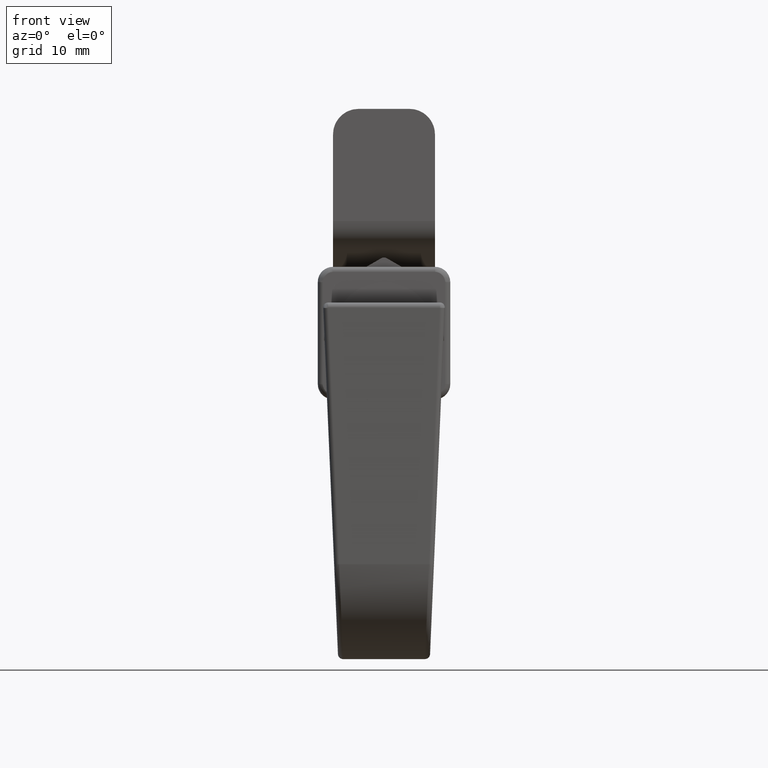
[diagram: clean part render]
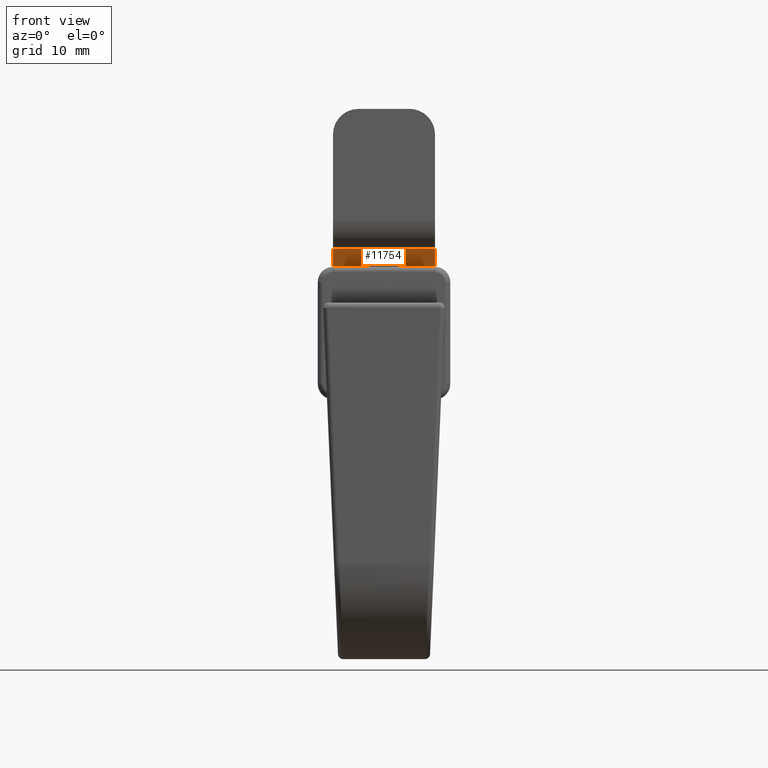
[diagram: same view with one face highlighted and labeled with its STEP entity id]
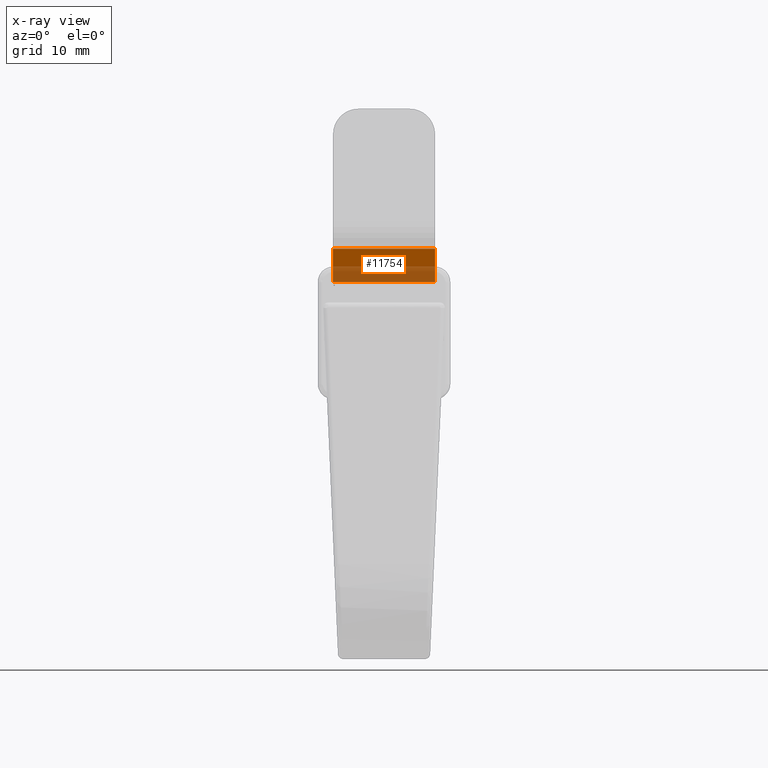
[diagram: x-ray of the same camera — body ghosted, the highlighted face saturated]
A machine part, front view. The second image highlights one B-rep face of the part: STEP entity #11754.
The next image is the same camera in x-ray: the body ghosted, the highlighted face saturated — about 46% of this face is hidden behind the body in this view.
In plain terms, the highlighted face is a freeform B-spline surface patch.
Its self-contained STEP definition (entity closure, byte-faithful):
#11719=CARTESIAN_POINT('',(13.558191673854610,-5.499499980617945,4.836763284622626));
#11720=CARTESIAN_POINT('',(3.468808464306220,-5.499499980617945,8.431236666155808));
#11721=CARTESIAN_POINT('',(13.558191673854610,5.499500248838955,4.836763284622626));
#11722=CARTESIAN_POINT('',(3.468808464306220,5.499500248838955,8.431236666155808));
#11723=B_SPLINE_SURFACE_WITH_KNOTS('',1,1,((#11719,#11721),(#11720,#11722)),.UNSPECIFIED.,.F.,.F.,.U.,(2,2),(2,2),(0.0,10.710550519915760),(0.0,10.999000229456900),.UNSPECIFIED.);
#11724=CARTESIAN_POINT('',(3.927000056147814,-4.999999999999890,8.267999979996610));
#11725=VERTEX_POINT('',#11724);
#11726=CARTESIAN_POINT('',(13.100000000000000,-4.999999999999890,5.0));
#11727=VERTEX_POINT('',#11726);
#11728=CARTESIAN_POINT('',(3.927000056147814,-4.999999999999890,8.267999979996610));
#11729=CARTESIAN_POINT('',(13.100000000000000,-4.999999999999890,5.0));
#11730=QUASI_UNIFORM_CURVE('',1,(#11728,#11729),.UNSPECIFIED.,.F.,.U.);
#11731=EDGE_CURVE('',#11725,#11727,#11730,.T.);
#11732=ORIENTED_EDGE('',*,*,#11731,.F.);
#11733=CARTESIAN_POINT('',(3.927000056147814,5.0,8.267999979996610));
#11734=VERTEX_POINT('',#11733);
#11735=CARTESIAN_POINT('',(3.927000056147814,5.0,8.267999979996610));
#11736=CARTESIAN_POINT('',(3.927000056147814,-4.999999999999890,8.267999979996610));
#11737=QUASI_UNIFORM_CURVE('',1,(#11735,#11736),.UNSPECIFIED.,.F.,.U.);
#11738=EDGE_CURVE('',#11734,#11725,#11737,.T.);
#11739=ORIENTED_EDGE('',*,*,#11738,.F.);
#11740=CARTESIAN_POINT('',(13.100000000000000,5.0,5.0));
#11741=VERTEX_POINT('',#11740);
#11742=CARTESIAN_POINT('',(3.927000056147814,5.0,8.267999979996610));
#11743=CARTESIAN_POINT('',(13.100000000000000,5.0,5.0));
#11744=QUASI_UNIFORM_CURVE('',1,(#11742,#11743),.UNSPECIFIED.,.F.,.U.);
#11745=EDGE_CURVE('',#11734,#11741,#11744,.T.);
#11746=ORIENTED_EDGE('',*,*,#11745,.T.);
#11747=CARTESIAN_POINT('',(13.100000000000000,5.0,5.0));
#11748=CARTESIAN_POINT('',(13.100000000000000,-4.999999999999890,5.0));
#11749=QUASI_UNIFORM_CURVE('',1,(#11747,#11748),.UNSPECIFIED.,.F.,.U.);
#11750=EDGE_CURVE('',#11741,#11727,#11749,.T.);
#11751=ORIENTED_EDGE('',*,*,#11750,.T.);
#11752=EDGE_LOOP('',(#11732,#11739,#11746,#11751));
#11753=FACE_OUTER_BOUND('',#11752,.T.);
#11754=ADVANCED_FACE('',(#11753),#11723,.T.);